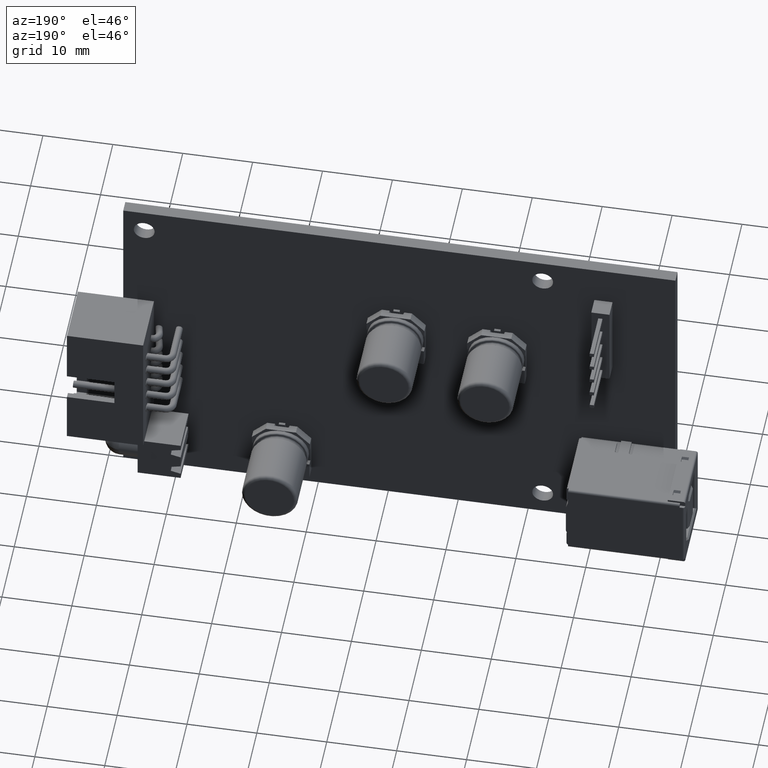
[diagram: clean part render]
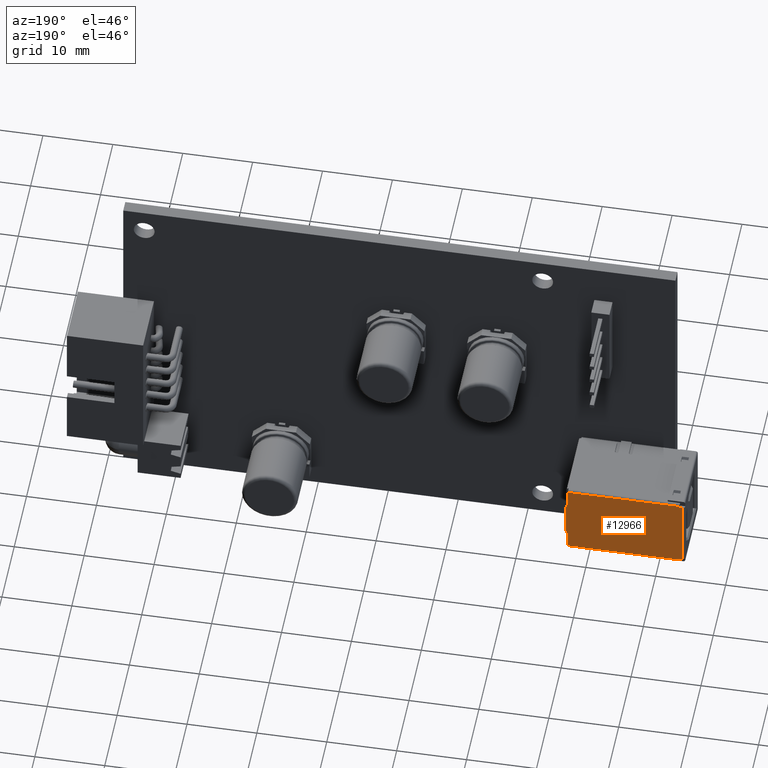
[diagram: same view with one face highlighted and labeled with its STEP entity id]
A machine part, auxiliary view. The second image highlights one B-rep face of the part: STEP entity #12966.
In plain terms, the highlighted planar face has unit normal (0, 1, 0).
Its self-contained STEP definition (entity closure, byte-faithful):
#55 = VECTOR ( 'NONE', #7522, 1000.000000000000000 ) ;
#212 = EDGE_CURVE ( 'NONE', #2175, #15411, #12104, .T. ) ;
#511 = LINE ( 'NONE', #4355, #13638 ) ;
#569 = VECTOR ( 'NONE', #3597, 1000.000000000000100 ) ;
#927 = EDGE_CURVE ( 'NONE', #2583, #7579, #6421, .T. ) ;
#1427 = EDGE_LOOP ( 'NONE', ( #3058, #8345, #9523, #1485, #3413, #9486, #13030, #11858, #5858, #6587, #5567, #7815 ) ) ;
#1485 = ORIENTED_EDGE ( 'NONE', *, *, #2663, .F. ) ;
#1572 = VECTOR ( 'NONE', #14436, 1000.000000000000000 ) ;
#1814 = CARTESIAN_POINT ( 'NONE',  ( -27.61143262225129600, 12.52670093000470800, -44.95000000001046200 ) ) ;
#1836 = VERTEX_POINT ( 'NONE', #8611 ) ;
#1858 = FACE_OUTER_BOUND ( 'NONE', #1427, .T. ) ;
#1864 = LINE ( 'NONE', #8491, #13783 ) ;
#1888 = CARTESIAN_POINT ( 'NONE',  ( -27.91143262225130100, 12.52670093000470800, -45.25000000001045900 ) ) ;
#2175 = VERTEX_POINT ( 'NONE', #13502 ) ;
#2190 = EDGE_CURVE ( 'NONE', #7579, #10576, #13536, .T. ) ;
#2403 = CARTESIAN_POINT ( 'NONE',  ( -43.86143262225130000, 12.52670093000470800, -34.15000000001045800 ) ) ;
#2583 = VERTEX_POINT ( 'NONE', #2743 ) ;
#2663 = EDGE_CURVE ( 'NONE', #2972, #10576, #10957, .T. ) ;
#2704 = EDGE_CURVE ( 'NONE', #2175, #2583, #3343, .T. ) ;
#2743 = CARTESIAN_POINT ( 'NONE',  ( -27.61143262225129600, 12.52670093000470800, -41.94896697522214900 ) ) ;
#2833 = DIRECTION ( 'NONE',  ( 0.0000000000000000000, 1.000000000000000000, 0.0000000000000000000 ) ) ;
#2942 = VECTOR ( 'NONE', #7724, 1000.000000000000000 ) ;
#2960 = EDGE_CURVE ( 'NONE', #4621, #1836, #10146, .T. ) ;
#2972 = VERTEX_POINT ( 'NONE', #6526 ) ;
#3058 = ORIENTED_EDGE ( 'NONE', *, *, #2704, .T. ) ;
#3125 = DIRECTION ( 'NONE',  ( 1.000000000000000000, -0.0000000000000000000, -0.0000000000000000000 ) ) ;
#3263 = CARTESIAN_POINT ( 'NONE',  ( -44.31143262225129600, 12.52670093000470800, -44.75000000001045900 ) ) ;
#3343 = LINE ( 'NONE', #10624, #1572 ) ;
#3413 = ORIENTED_EDGE ( 'NONE', *, *, #4329, .F. ) ;
#3490 = CARTESIAN_POINT ( 'NONE',  ( -27.91143262225130100, 12.52670093000470800, -42.84896697522215400 ) ) ;
#3547 = CARTESIAN_POINT ( 'NONE',  ( -43.86143262225130000, 12.52670093000470800, -44.75000000001045900 ) ) ;
#3597 = DIRECTION ( 'NONE',  ( -0.3162277660168393800, 0.0000000000000000000, 0.9486832980505132100 ) ) ;
#3780 = CARTESIAN_POINT ( 'NONE',  ( -27.91143262225130100, 12.52670093000470800, -34.15000000001045800 ) ) ;
#3813 = DIRECTION ( 'NONE',  ( 0.0000000000000000000, 0.0000000000000000000, -1.000000000000000000 ) ) ;
#4329 = EDGE_CURVE ( 'NONE', #12735, #2972, #7287, .T. ) ;
#4355 = CARTESIAN_POINT ( 'NONE',  ( -44.31143262225129600, 12.52670093000470800, -33.85000000001045400 ) ) ;
#4621 = VERTEX_POINT ( 'NONE', #5322 ) ;
#4713 = DIRECTION ( 'NONE',  ( 1.000000000000000000, -0.0000000000000000000, -0.0000000000000000000 ) ) ;
#5070 = CARTESIAN_POINT ( 'NONE',  ( -27.91143262225130100, 12.52670093000470800, -36.25103302479876500 ) ) ;
#5322 = CARTESIAN_POINT ( 'NONE',  ( -43.86143262225130000, 12.52670093000470800, -34.35000000001045400 ) ) ;
#5567 = ORIENTED_EDGE ( 'NONE', *, *, #9357, .F. ) ;
#5721 = VECTOR ( 'NONE', #12496, 1000.000000000000000 ) ;
#5810 = VERTEX_POINT ( 'NONE', #2403 ) ;
#5858 = ORIENTED_EDGE ( 'NONE', *, *, #16504, .T. ) ;
#6254 = CARTESIAN_POINT ( 'NONE',  ( -43.86143262225130000, 12.52670093000470800, -34.35000000001045400 ) ) ;
#6421 = LINE ( 'NONE', #3490, #9442 ) ;
#6456 = EDGE_CURVE ( 'NONE', #5810, #12896, #1864, .T. ) ;
#6518 = PLANE ( 'NONE',  #13845 ) ;
#6526 = CARTESIAN_POINT ( 'NONE',  ( -43.86143262225130000, 12.52670093000470800, -44.95000000001046200 ) ) ;
#6587 = ORIENTED_EDGE ( 'NONE', *, *, #6456, .T. ) ;
#7218 = LINE ( 'NONE', #6254, #55 ) ;
#7287 = LINE ( 'NONE', #11470, #13641 ) ;
#7522 = DIRECTION ( 'NONE',  ( 0.0000000000000000000, 0.0000000000000000000, 1.000000000000000000 ) ) ;
#7579 = VERTEX_POINT ( 'NONE', #10077 ) ;
#7724 = DIRECTION ( 'NONE',  ( -1.000000000000000000, 0.0000000000000000000, 0.0000000000000000000 ) ) ;
#7815 = ORIENTED_EDGE ( 'NONE', *, *, #212, .F. ) ;
#8007 = CARTESIAN_POINT ( 'NONE',  ( -27.91143262225130100, 12.52670093000470800, -44.95000000001046200 ) ) ;
#8345 = ORIENTED_EDGE ( 'NONE', *, *, #927, .T. ) ;
#8491 = CARTESIAN_POINT ( 'NONE',  ( -27.61143262225129600, 12.52670093000470800, -34.15000000001045800 ) ) ;
#8611 = CARTESIAN_POINT ( 'NONE',  ( -44.31143262225129600, 12.52670093000470800, -34.35000000001045400 ) ) ;
#9111 = CARTESIAN_POINT ( 'NONE',  ( -27.61143262225129600, 12.52670093000470800, -45.55000000001045600 ) ) ;
#9118 = CARTESIAN_POINT ( 'NONE',  ( -43.86143262225130000, 12.52670093000470800, -34.35000000001045400 ) ) ;
#9357 = EDGE_CURVE ( 'NONE', #15411, #12896, #12913, .T. ) ;
#9442 = VECTOR ( 'NONE', #13475, 1000.000000000000100 ) ;
#9486 = ORIENTED_EDGE ( 'NONE', *, *, #13418, .T. ) ;
#9523 = ORIENTED_EDGE ( 'NONE', *, *, #2190, .T. ) ;
#10077 = CARTESIAN_POINT ( 'NONE',  ( -27.91143262225130100, 12.52670093000470800, -42.84896697522215400 ) ) ;
#10146 = LINE ( 'NONE', #9118, #12920 ) ;
#10576 = VERTEX_POINT ( 'NONE', #8007 ) ;
#10624 = CARTESIAN_POINT ( 'NONE',  ( -27.61143262225129600, 12.52670093000470800, -45.55000000001045600 ) ) ;
#10957 = LINE ( 'NONE', #1814, #14501 ) ;
#11257 = CARTESIAN_POINT ( 'NONE',  ( -27.91143262225130100, 12.52670093000470800, -36.25103302479876500 ) ) ;
#11444 = DIRECTION ( 'NONE',  ( -1.000000000000000000, 0.0000000000000000000, 0.0000000000000000000 ) ) ;
#11470 = CARTESIAN_POINT ( 'NONE',  ( -43.86143262225130000, 12.52670093000470800, -44.75000000001045900 ) ) ;
#11528 = CARTESIAN_POINT ( 'NONE',  ( -43.86143262225130000, 12.52670093000470800, -44.75000000001045900 ) ) ;
#11686 = EDGE_CURVE ( 'NONE', #12224, #1836, #511, .T. ) ;
#11858 = ORIENTED_EDGE ( 'NONE', *, *, #2960, .F. ) ;
#12085 = DIRECTION ( 'NONE',  ( 0.0000000000000000000, 0.0000000000000000000, -1.000000000000000000 ) ) ;
#12104 = LINE ( 'NONE', #11257, #569 ) ;
#12224 = VERTEX_POINT ( 'NONE', #3263 ) ;
#12496 = DIRECTION ( 'NONE',  ( 0.0000000000000000000, 0.0000000000000000000, 1.000000000000000000 ) ) ;
#12531 = VECTOR ( 'NONE', #12085, 1000.000000000000000 ) ;
#12735 = VERTEX_POINT ( 'NONE', #3547 ) ;
#12896 = VERTEX_POINT ( 'NONE', #3780 ) ;
#12913 = LINE ( 'NONE', #14543, #5721 ) ;
#12920 = VECTOR ( 'NONE', #11444, 1000.000000000000000 ) ;
#12966 = ADVANCED_FACE ( 'NONE', ( #1858 ), #6518, .T. ) ;
#13030 = ORIENTED_EDGE ( 'NONE', *, *, #11686, .T. ) ;
#13418 = EDGE_CURVE ( 'NONE', #12735, #12224, #16098, .T. ) ;
#13475 = DIRECTION ( 'NONE',  ( -0.3162277660168393800, 0.0000000000000000000, -0.9486832980505132100 ) ) ;
#13502 = CARTESIAN_POINT ( 'NONE',  ( -27.61143262225129600, 12.52670093000470800, -37.15103302479876400 ) ) ;
#13536 = LINE ( 'NONE', #1888, #12531 ) ;
#13638 = VECTOR ( 'NONE', #14601, 1000.000000000000000 ) ;
#13641 = VECTOR ( 'NONE', #3813, 1000.000000000000000 ) ;
#13783 = VECTOR ( 'NONE', #4713, 1000.000000000000000 ) ;
#13845 = AXIS2_PLACEMENT_3D ( 'NONE', #9111, #2833, #15633 ) ;
#14436 = DIRECTION ( 'NONE',  ( 0.0000000000000000000, -0.0000000000000000000, -1.000000000000000000 ) ) ;
#14501 = VECTOR ( 'NONE', #3125, 1000.000000000000000 ) ;
#14543 = CARTESIAN_POINT ( 'NONE',  ( -27.91143262225130100, 12.52670093000470800, -33.85000000001045400 ) ) ;
#14601 = DIRECTION ( 'NONE',  ( -0.0000000000000000000, -0.0000000000000000000, 1.000000000000000000 ) ) ;
#15411 = VERTEX_POINT ( 'NONE', #5070 ) ;
#15633 = DIRECTION ( 'NONE',  ( -1.000000000000000000, 0.0000000000000000000, 0.0000000000000000000 ) ) ;
#16098 = LINE ( 'NONE', #11528, #2942 ) ;
#16504 = EDGE_CURVE ( 'NONE', #4621, #5810, #7218, .T. ) ;